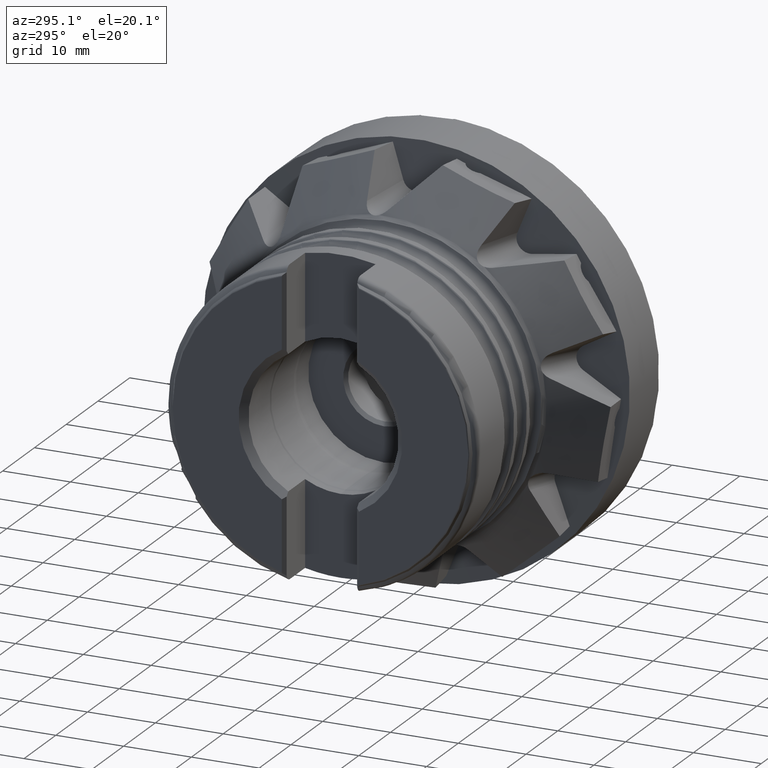
[diagram: clean part render]
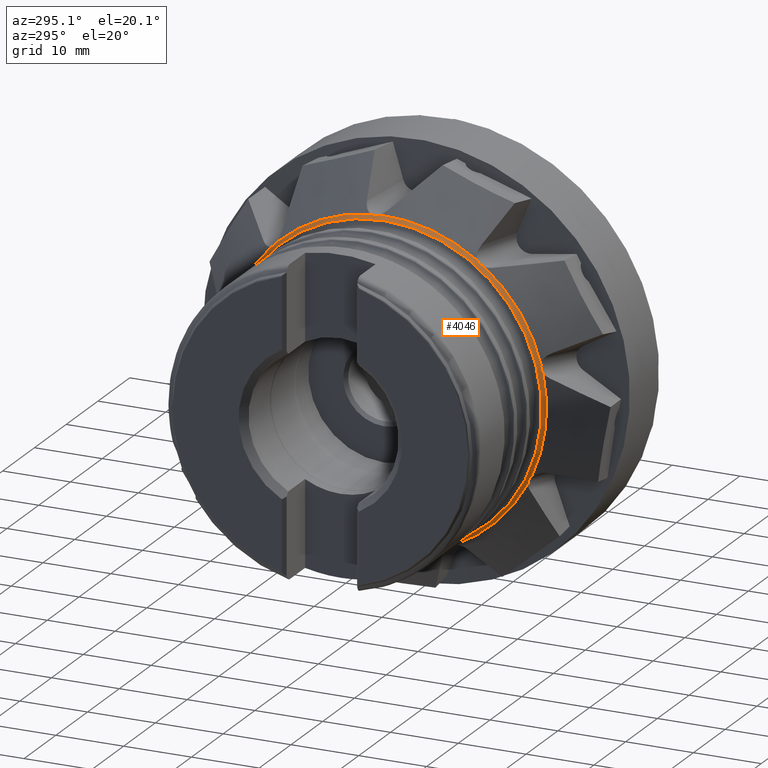
[diagram: same view with one face highlighted and labeled with its STEP entity id]
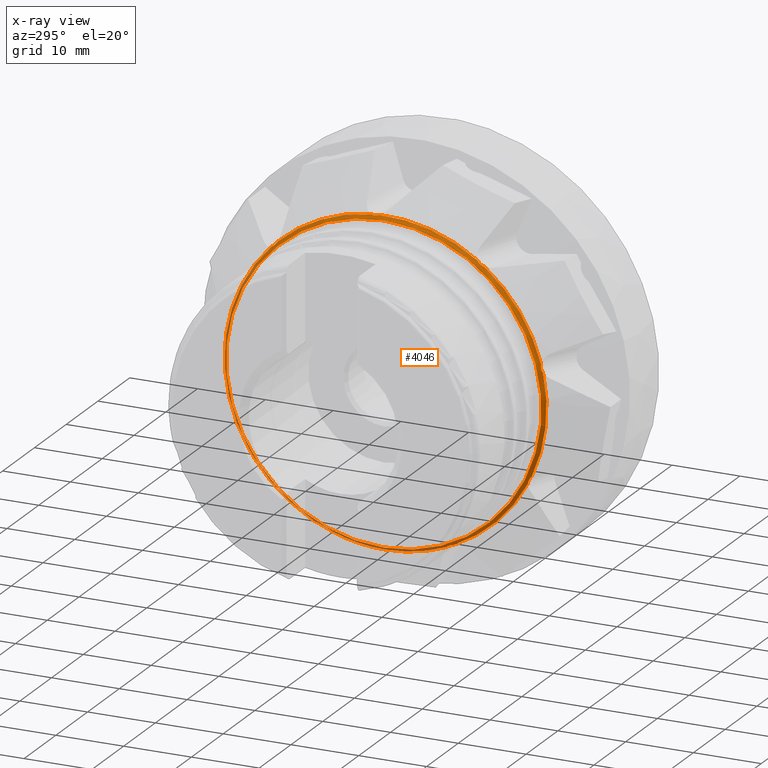
[diagram: x-ray of the same camera — body ghosted, the highlighted face saturated]
A machine part, auxiliary view. The second image highlights one B-rep face of the part: STEP entity #4046.
The next image is the same camera in x-ray: the body ghosted, the highlighted face saturated — about 22% of this face is hidden behind the body in this view.
In plain terms, the highlighted toroidal blend (fillet) surface has major radius 25 mm and minor (blend) radius 2 mm.
Its self-contained STEP definition (entity closure, byte-faithful):
#36 = CARTESIAN_POINT ( 'NONE',  ( -18.87109316118166900, 2.027629076573461000, 23.62315996420056800 ) ) ;
#83 = CARTESIAN_POINT ( 'NONE',  ( -18.89453092292473700, -22.91148521642119500, 5.997104320561804900 ) ) ;
#196 = CARTESIAN_POINT ( 'NONE',  ( -18.84233078654614200, -22.92177747871820900, 6.200229754446998400 ) ) ;
#213 = CARTESIAN_POINT ( 'NONE',  ( -18.92608834092564900, 16.47956966765457300, 16.96047828382316400 ) ) ;
#225 = CARTESIAN_POINT ( 'NONE',  ( -18.92634297155851500, 19.56550581909931800, -13.28201892108478600 ) ) ;
#257 = CARTESIAN_POINT ( 'NONE',  ( -18.92608834092567300, 6.448420220297900400, -22.75196511753589900 ) ) ;
#305 = EDGE_CURVE ( 'NONE', #4736, #3599, #566, .T. ) ;
#337 = CIRCLE ( 'NONE', #7519, 23.74554130340690300 ) ;
#419 = VERTEX_POINT ( 'NONE', #6811 ) ;
#436 = CARTESIAN_POINT ( 'NONE',  ( -18.87109316118166900, -9.984944637708002400, -21.50501911062347200 ) ) ;
#455 = CARTESIAN_POINT ( 'NONE',  ( -18.84233078654613900, -13.57366940061346000, 19.48348610476709900 ) ) ;
#469 = DIRECTION ( 'NONE',  ( 0.0000000000000000000, 0.0000000000000000000, -1.000000000000000000 ) ) ;
#566 = B_SPLINE_CURVE_WITH_KNOTS ( 'NONE', 3,
 ( #5057, #4375, #7798, #1062, #5756, #1735, #6421, #2400 ),
 .UNSPECIFIED., .F., .F.,
 ( 4, 2, 2, 4 ),
 ( 7.245513255973617800E-007, 0.0003134548136920501100, 0.0006261850760585028300, 0.001251645600791410300 ),
 .UNSPECIFIED. ) ;
#576 = CARTESIAN_POINT ( 'NONE',  ( -18.84233078654615000, -21.00247500420518100, -11.07911438200452300 ) ) ;
#741 = CARTESIAN_POINT ( 'NONE',  ( -18.93402310796142300, -22.94565791749596400, 5.686343968082026900 ) ) ;
#754 = B_SPLINE_CURVE_WITH_KNOTS ( 'NONE', 3,
 ( #7583, #2808, #4161, #213, #4846, #845, #5532, #1514 ),
 .UNSPECIFIED., .F., .F.,
 ( 4, 2, 2, 4 ),
 ( 7.245513255863568100E-007, 0.0003134548136920361800, 0.0006261850760584859200, 0.001251645600791393200 ),
 .UNSPECIFIED. ) ;
#845 = CARTESIAN_POINT ( 'NONE',  ( -18.93131883547561100, 16.17224312548226500, 17.24723445849795700 ) ) ;
#851 = CARTESIAN_POINT ( 'NONE',  ( -19.40613999184830600, 0.0000000000000000000, -23.26441874745260900 ) ) ;
#864 = CARTESIAN_POINT ( 'NONE',  ( -18.93224806829895400, 19.73443589431508000, -13.01846135206943300 ) ) ;
#906 = CARTESIAN_POINT ( 'NONE',  ( -18.93131883547559000, 6.850421623344628200, -22.62919061209484200 ) ) ;
#907 = VERTEX_POINT ( 'NONE', #1969 ) ;
#960 = CARTESIAN_POINT ( 'NONE',  ( -18.84233078654614200, 6.091332262707648900, -22.95095647368753700 ) ) ;
#1010 = VERTEX_POINT ( 'NONE', #196 ) ;
#1062 = CARTESIAN_POINT ( 'NONE',  ( -18.92608834092565600, 23.52606806409800900, 2.399616946628320100 ) ) ;
#1137 = VERTEX_POINT ( 'NONE', #7949 ) ;
#1159 = ORIENTED_EDGE ( 'NONE', *, *, #7290, .F. ) ;
#1350 = CARTESIAN_POINT ( 'NONE',  ( -18.92608834092565600, 1.722097473699664800, 23.58534333729733100 ) ) ;
#1374 = VERTEX_POINT ( 'NONE', #576 ) ;
#1392 = CARTESIAN_POINT ( 'NONE',  ( -18.89461513993487800, -23.10590126259101900, 5.189099998130372700 ) ) ;
#1430 = CARTESIAN_POINT ( 'NONE',  ( -18.84233078654613500, -8.967311817664093400, -21.98722471246849600 ) ) ;
#1445 = CARTESIAN_POINT ( 'NONE',  ( -18.84233078654614200, 0.0000000000000000000, 0.0000000000000000000 ) ) ;
#1479 = FACE_OUTER_BOUND ( 'NONE', #3923, .T. ) ;
#1514 = CARTESIAN_POINT ( 'NONE',  ( -18.84233078654614600, 15.94659049083753100, 17.59423154074462700 ) ) ;
#1520 = ORIENTED_EDGE ( 'NONE', *, *, #1980, .F. ) ;
#1529 = CARTESIAN_POINT ( 'NONE',  ( -18.89070057671045100, 19.94191246914689200, -12.78394848300921700 ) ) ;
#1544 = ORIENTED_EDGE ( 'NONE', *, *, #3911, .F. ) ;
#1562 = CARTESIAN_POINT ( 'NONE',  ( -18.84233078654628500, 7.263756228931878700, -22.60726823918470200 ) ) ;
#1572 = EDGE_CURVE ( 'NONE', #1374, #4180, #4811, .T. ) ;
#1591 = CARTESIAN_POINT ( 'NONE',  ( -18.92608834092564900, -21.28655522392733700, -10.30129150863183100 ) ) ;
#1634 = AXIS2_PLACEMENT_3D ( 'NONE', #7396, #3315, #8094 ) ;
#1735 = CARTESIAN_POINT ( 'NONE',  ( -18.93131883547561500, 23.47496559032599700, 2.816830614204170600 ) ) ;
#1755 = CARTESIAN_POINT ( 'NONE',  ( -18.89453092292474800, -9.884532485986444100, -21.52202203761222400 ) ) ;
#1770 = AXIS2_PLACEMENT_3D ( 'NONE', #2860, #7631, #3540 ) ;
#1786 = CARTESIAN_POINT ( 'NONE',  ( -18.84233078654614200, 0.0000000000000000000, 0.0000000000000000000 ) ) ;
#1845 = CIRCLE ( 'NONE', #5558, 23.74554130340690300 ) ;
#1969 = CARTESIAN_POINT ( 'NONE',  ( -18.84233078654614600, 20.09603200835191600, -12.64911970498729800 ) ) ;
#1975 = EDGE_CURVE ( 'NONE', #2251, #2251, #7590, .T. ) ;
#1980 = EDGE_CURVE ( 'NONE', #7617, #1137, #2798, .T. ) ;
#2035 = CARTESIAN_POINT ( 'NONE',  ( -18.93131883547560400, 1.302348367763528100, 23.60746561800083400 ) ) ;
#2042 = AXIS2_PLACEMENT_3D ( 'NONE', #7134, #3037, #7818 ) ;
#2071 = EDGE_CURVE ( 'NONE', #4316, #5288, #5778, .T. ) ;
#2129 = DIRECTION ( 'NONE',  ( 0.0000000000000000000, 0.0000000000000000000, -1.000000000000000000 ) ) ;
#2144 = B_SPLINE_CURVE_WITH_KNOTS ( 'NONE', 3,
 ( #4682, #36, #5354, #1350, #6045, #2035, #6730, #2682 ),
 .UNSPECIFIED., .F., .F.,
 ( 4, 2, 2, 4 ),
 ( 7.245513256657761000E-007, 0.0003134548136921185800, 0.0006261850760585713600, 0.001251645600791478000 ),
 .UNSPECIFIED. ) ;
#2189 = DIRECTION ( 'NONE',  ( 1.000000000000000000, -0.0000000000000000000, -0.0000000000000000000 ) ) ;
#2192 = EDGE_CURVE ( 'NONE', #3717, #1010, #7183, .T. ) ;
#2204 = CARTESIAN_POINT ( 'NONE',  ( -18.84233078654614600, 20.09603200835191600, -12.64911970498729800 ) ) ;
#2208 = CARTESIAN_POINT ( 'NONE',  ( -18.84233078654614200, 6.091332262707648900, -22.95095647368753700 ) ) ;
#2219 = EDGE_CURVE ( 'NONE', #907, #4736, #8600, .T. ) ;
#2251 = VERTEX_POINT ( 'NONE', #851 ) ;
#2272 = CARTESIAN_POINT ( 'NONE',  ( -18.93131883547561900, -21.09583912803816100, -10.67586603794002200 ) ) ;
#2400 = CARTESIAN_POINT ( 'NONE',  ( -18.84233078654613900, 23.52515106854678400, 3.227692518480486300 ) ) ;
#2414 = CARTESIAN_POINT ( 'NONE',  ( -18.93402310796142600, -9.584427308803302700, -21.60963854747120600 ) ) ;
#2435 = DIRECTION ( 'NONE',  ( 0.0000000000000000000, 0.0000000000000000000, -1.000000000000000000 ) ) ;
#2497 = B_SPLINE_CURVE_WITH_KNOTS ( 'NONE', 3,
 ( #7455, #4047, #83, #4725, #741, #5410, #1392, #6086 ),
 .UNSPECIFIED., .F., .F.,
 ( 4, 2, 2, 4 ),
 ( 7.245513359032656500E-007, 0.0003134548137024269600, 0.0006261850760689506400, 0.001251645600802000600 ),
 .UNSPECIFIED. ) ;
#2555 = CARTESIAN_POINT ( 'NONE',  ( -18.89453092292476600, -13.69635158238740900, 19.32126725620295800 ) ) ;
#2590 = CARTESIAN_POINT ( 'NONE',  ( -18.84233078654615000, 19.41882168277999200, -13.66601976598147600 ) ) ;
#2615 = CARTESIAN_POINT ( 'NONE',  ( -18.84233078654614200, 0.0000000000000000000, 0.0000000000000000000 ) ) ;
#2681 = VERTEX_POINT ( 'NONE', #1430 ) ;
#2682 = CARTESIAN_POINT ( 'NONE',  ( -18.84233078654613900, 0.9064429958532339600, 23.72823408699163700 ) ) ;
#2798 = B_SPLINE_CURVE_WITH_KNOTS ( 'NONE', 3,
 ( #2208, #6232, #4216, #257, #4902, #906, #5582, #1562 ),
 .UNSPECIFIED., .F., .F.,
 ( 4, 2, 2, 4 ),
 ( 7.245513255938024400E-007, 0.0003134548136921590200, 0.0006261850760587242300, 0.001251645600791854600 ),
 .UNSPECIFIED. ) ;
#2808 = CARTESIAN_POINT ( 'NONE',  ( -18.87109316118167300, 16.73792851344681100, 16.79305557202494700 ) ) ;
#2860 = CARTESIAN_POINT ( 'NONE',  ( -19.40613999184830600, 0.0000000000000000000, 0.0000000000000000000 ) ) ;
#2913 = CARTESIAN_POINT ( 'NONE',  ( -18.84233078654615000, 23.66002862131616900, 2.013399471119087500 ) ) ;
#2920 = CARTESIAN_POINT ( 'NONE',  ( -18.84233078654615000, -21.00247500420518100, -11.07911438200452300 ) ) ;
#2985 = CARTESIAN_POINT ( 'NONE',  ( -18.84233078654614200, 0.0000000000000000000, 0.0000000000000000000 ) ) ;
#3037 = DIRECTION ( 'NONE',  ( 1.000000000000000000, -0.0000000000000000000, -0.0000000000000000000 ) ) ;
#3067 = CARTESIAN_POINT ( 'NONE',  ( -18.89461513993488100, -9.122563556915350700, -21.85379294532739200 ) ) ;
#3080 = ORIENTED_EDGE ( 'NONE', *, *, #5781, .F. ) ;
#3093 = DIRECTION ( 'NONE',  ( 1.000000000000000000, -0.0000000000000000000, -0.0000000000000000000 ) ) ;
#3120 = EDGE_CURVE ( 'NONE', #7729, #1374, #5783, .T. ) ;
#3215 = CARTESIAN_POINT ( 'NONE',  ( -18.93402310796143000, -13.92228229430779500, 19.10517680388464600 ) ) ;
#3285 = DIRECTION ( 'NONE',  ( 0.0000000000000000000, 0.0000000000000000000, -1.000000000000000000 ) ) ;
#3315 = DIRECTION ( 'NONE',  ( 1.000000000000000000, -0.0000000000000000000, -0.0000000000000000000 ) ) ;
#3540 = DIRECTION ( 'NONE',  ( 0.0000000000000000000, 0.0000000000000000000, -1.000000000000000000 ) ) ;
#3564 = DIRECTION ( 'NONE',  ( 1.000000000000000000, -0.0000000000000000000, -0.0000000000000000000 ) ) ;
#3567 = CARTESIAN_POINT ( 'NONE',  ( -18.87109316118167300, -21.47207118494788200, -10.05560169233574900 ) ) ;
#3599 = VERTEX_POINT ( 'NONE', #6074 ) ;
#3669 = DIRECTION ( 'NONE',  ( 0.0000000000000000000, 0.0000000000000000000, -1.000000000000000000 ) ) ;
#3717 = VERTEX_POINT ( 'NONE', #3851 ) ;
#3851 = CARTESIAN_POINT ( 'NONE',  ( -18.84233078654614600, -14.55783925088255500, 18.75953219398783700 ) ) ;
#3885 = CARTESIAN_POINT ( 'NONE',  ( -18.84233078654614200, -21.54453112735013700, -9.984183005857005400 ) ) ;
#3904 = CARTESIAN_POINT ( 'NONE',  ( -18.89461513993488500, -14.36465808124089000, 18.82726826059059300 ) ) ;
#3911 = EDGE_CURVE ( 'NONE', #1010, #6881, #2497, .T. ) ;
#3923 = EDGE_LOOP ( 'NONE', ( #5588 ) ) ;
#4046 = ADVANCED_FACE ( 'NONE', ( #8280, #1479 ), #8069, .F. ) ;
#4047 = CARTESIAN_POINT ( 'NONE',  ( -18.87109316118165500, -22.91217698926086800, 6.098943513360392600 ) ) ;
#4161 = CARTESIAN_POINT ( 'NONE',  ( -18.89453092292475500, 16.64938729896248800, 16.84337607557147400 ) ) ;
#4174 = CARTESIAN_POINT ( 'NONE',  ( -18.89483807059994900, 19.47910931430617900, -13.47030876822515400 ) ) ;
#4180 = VERTEX_POINT ( 'NONE', #5148 ) ;
#4216 = CARTESIAN_POINT ( 'NONE',  ( -18.89453092292477600, 6.262097917458646600, -22.84048039613322700 ) ) ;
#4247 = CARTESIAN_POINT ( 'NONE',  ( -18.84233078654614200, -21.54453112735013700, -9.984183005857005400 ) ) ;
#4292 = B_SPLINE_CURVE_WITH_KNOTS ( 'NONE', 3,
 ( #8683, #5917, #2555, #7306, #3215, #8000, #3904, #8710 ),
 .UNSPECIFIED., .F., .F.,
 ( 4, 2, 2, 4 ),
 ( 7.245513255701277700E-007, 0.0003134548136920195900, 0.0006261850760584691200, 0.001251645600791378000 ),
 .UNSPECIFIED. ) ;
#4316 = VERTEX_POINT ( 'NONE', #6343 ) ;
#4375 = CARTESIAN_POINT ( 'NONE',  ( -18.87109316118168000, 23.61636517752376500, 2.105293843675214700 ) ) ;
#4437 = DIRECTION ( 'NONE',  ( 1.000000000000000000, -0.0000000000000000000, -0.0000000000000000000 ) ) ;
#4467 = EDGE_CURVE ( 'NONE', #7274, #3717, #4292, .T. ) ;
#4661 = ORIENTED_EDGE ( 'NONE', *, *, #5633, .F. ) ;
#4682 = CARTESIAN_POINT ( 'NONE',  ( -18.84233078654613900, 2.125709444570138100, 23.65020277183830900 ) ) ;
#4725 = CARTESIAN_POINT ( 'NONE',  ( -18.92608834092564900, -22.92798988795246000, 5.791486833712693500 ) ) ;
#4736 = VERTEX_POINT ( 'NONE', #2913 ) ;
#4756 = AXIS2_PLACEMENT_3D ( 'NONE', #1786, #6467, #2435 ) ;
#4762 = B_SPLINE_CURVE_WITH_KNOTS ( 'NONE', 3,
 ( #5077, #436, #1755, #6435, #2414, #7162, #3067, #7839 ),
 .UNSPECIFIED., .F., .F.,
 ( 4, 2, 2, 4 ),
 ( 7.245513255607321600E-007, 0.0003134548136920326000, 0.0006261850760585044600, 0.001251645600791448300 ),
 .UNSPECIFIED. ) ;
#4771 = VERTEX_POINT ( 'NONE', #8420 ) ;
#4811 = CIRCLE ( 'NONE', #4756, 23.74554130340690300 ) ;
#4846 = CARTESIAN_POINT ( 'NONE',  ( -18.93402310796142300, 16.39734728976353400, 17.02835067905794000 ) ) ;
#4863 = CARTESIAN_POINT ( 'NONE',  ( -18.93400312182612700, 19.61673550081005500, -13.19175692510450300 ) ) ;
#4875 = CARTESIAN_POINT ( 'NONE',  ( -20.39999999999999900, 0.0000000000000000000, 0.0000000000000000000 ) ) ;
#4902 = CARTESIAN_POINT ( 'NONE',  ( -18.93402310796143700, 6.548310627732467600, -22.71469464714006700 ) ) ;
#4926 = CIRCLE ( 'NONE', #7783, 23.74554130340690300 ) ;
#5007 = EDGE_CURVE ( 'NONE', #6881, #7729, #4926, .T. ) ;
#5057 = CARTESIAN_POINT ( 'NONE',  ( -18.84233078654615000, 23.66002862131616900, 2.013399471119087500 ) ) ;
#5077 = CARTESIAN_POINT ( 'NONE',  ( -18.84233078654613500, -10.08635922070264200, -21.49688557588634600 ) ) ;
#5148 = CARTESIAN_POINT ( 'NONE',  ( -18.84233078654613500, -10.08635922070264200, -21.49688557588634600 ) ) ;
#5257 = ORIENTED_EDGE ( 'NONE', *, *, #1572, .F. ) ;
#5288 = VERTEX_POINT ( 'NONE', #6546 ) ;
#5304 = ORIENTED_EDGE ( 'NONE', *, *, #5899, .F. ) ;
#5337 = AXIS2_PLACEMENT_3D ( 'NONE', #2985, #7762, #3669 ) ;
#5354 = CARTESIAN_POINT ( 'NONE',  ( -18.89453092292475100, 1.927457175037840400, 23.60479451070020600 ) ) ;
#5410 = CARTESIAN_POINT ( 'NONE',  ( -18.93131883547561900, -23.02266474882668800, 5.381956153596954500 ) ) ;
#5518 = CARTESIAN_POINT ( 'NONE',  ( -18.87085868801232600, 19.44423324862391700, -13.56836093780883500 ) ) ;
#5532 = CARTESIAN_POINT ( 'NONE',  ( -18.89461513993488900, 16.04684305245431400, 17.41574747167343400 ) ) ;
#5549 = CARTESIAN_POINT ( 'NONE',  ( -18.92263333412051900, 19.80109054120552900, -12.93557949332468800 ) ) ;
#5558 = AXIS2_PLACEMENT_3D ( 'NONE', #7179, #3093, #7865 ) ;
#5559 = DIRECTION ( 'NONE',  ( 0.0000000000000000000, 0.0000000000000000000, -1.000000000000000000 ) ) ;
#5582 = CARTESIAN_POINT ( 'NONE',  ( -18.89461513993482100, 7.059058210136909900, -22.60484746980398200 ) ) ;
#5588 = ORIENTED_EDGE ( 'NONE', *, *, #1975, .T. ) ;
#5619 = CARTESIAN_POINT ( 'NONE',  ( -18.89453092292474400, -21.40608028489673800, -10.13317037706079500 ) ) ;
#5633 = EDGE_CURVE ( 'NONE', #4180, #2681, #4762, .T. ) ;
#5756 = CARTESIAN_POINT ( 'NONE',  ( -18.93402310796142300, 23.50670960311119400, 2.504461743586413800 ) ) ;
#5778 = CIRCLE ( 'NONE', #5337, 23.74554130340690300 ) ;
#5781 = EDGE_CURVE ( 'NONE', #5288, #419, #2144, .T. ) ;
#5783 = B_SPLINE_CURVE_WITH_KNOTS ( 'NONE', 3,
 ( #4247, #3567, #5619, #1591, #6291, #2272, #6997, #2920 ),
 .UNSPECIFIED., .F., .F.,
 ( 4, 2, 2, 4 ),
 ( 7.245513292328968600E-007, 0.0003134548136956950900, 0.0006261850760621573500, 0.001251645600795090800 ),
 .UNSPECIFIED. ) ;
#5830 = ORIENTED_EDGE ( 'NONE', *, *, #6582, .F. ) ;
#5899 = EDGE_CURVE ( 'NONE', #4771, #4316, #754, .T. ) ;
#5917 = CARTESIAN_POINT ( 'NONE',  ( -18.87109316118168000, -13.63142053981568900, 19.39972526694810300 ) ) ;
#6016 = ORIENTED_EDGE ( 'NONE', *, *, #2192, .F. ) ;
#6032 = ORIENTED_EDGE ( 'NONE', *, *, #3120, .F. ) ;
#6045 = CARTESIAN_POINT ( 'NONE',  ( -18.93402310796141900, 1.615483943319546300, 23.58448508276076400 ) ) ;
#6064 = AXIS2_PLACEMENT_3D ( 'NONE', #2615, #7371, #3285 ) ;
#6074 = CARTESIAN_POINT ( 'NONE',  ( -18.84233078654613900, 23.52515106854678400, 3.227692518480486300 ) ) ;
#6086 = CARTESIAN_POINT ( 'NONE',  ( -18.84233078654613900, -23.21034671976906700, 5.013036698440222600 ) ) ;
#6126 = ORIENTED_EDGE ( 'NONE', *, *, #305, .F. ) ;
#6150 = DIRECTION ( 'NONE',  ( 1.000000000000000000, -0.0000000000000000000, -0.0000000000000000000 ) ) ;
#6224 = CARTESIAN_POINT ( 'NONE',  ( -18.86847809978568700, 20.01683454010427000, -12.71399391593249500 ) ) ;
#6232 = CARTESIAN_POINT ( 'NONE',  ( -18.87109316118168700, 6.174248475813930000, -22.89199908538533300 ) ) ;
#6291 = CARTESIAN_POINT ( 'NONE',  ( -18.93402310796142300, -21.23250518850568400, -10.39319240705989200 ) ) ;
#6343 = CARTESIAN_POINT ( 'NONE',  ( -18.84233078654614600, 15.94659049083753100, 17.59423154074462700 ) ) ;
#6421 = CARTESIAN_POINT ( 'NONE',  ( -18.89461513993489200, 23.48722163815637400, 3.026524684736634700 ) ) ;
#6435 = CARTESIAN_POINT ( 'NONE',  ( -18.92608834092564500, -9.684904796917047400, -21.57398106798491400 ) ) ;
#6467 = DIRECTION ( 'NONE',  ( 1.000000000000000000, -0.0000000000000000000, -0.0000000000000000000 ) ) ;
#6477 = AXIS2_PLACEMENT_3D ( 'NONE', #4875, #2189, #5559 ) ;
#6546 = CARTESIAN_POINT ( 'NONE',  ( -18.84233078654613900, 2.125709444570138100, 23.65020277183830900 ) ) ;
#6582 = EDGE_CURVE ( 'NONE', #1137, #8513, #8550, .T. ) ;
#6589 = ORIENTED_EDGE ( 'NONE', *, *, #5007, .F. ) ;
#6658 = ORIENTED_EDGE ( 'NONE', *, *, #2071, .F. ) ;
#6730 = CARTESIAN_POINT ( 'NONE',  ( -18.89461513993488100, 1.097968261713611900, 23.65594846214098700 ) ) ;
#6796 = EDGE_CURVE ( 'NONE', #8513, #907, #8357, .T. ) ;
#6811 = CARTESIAN_POINT ( 'NONE',  ( -18.84233078654613900, 0.9064429958532339600, 23.72823408699163700 ) ) ;
#6881 = VERTEX_POINT ( 'NONE', #6991 ) ;
#6897 = CARTESIAN_POINT ( 'NONE',  ( -18.84233078654615000, 19.41882168277999200, -13.66601976598147600 ) ) ;
#6980 = ORIENTED_EDGE ( 'NONE', *, *, #4467, .F. ) ;
#6991 = CARTESIAN_POINT ( 'NONE',  ( -18.84233078654613900, -23.21034671976906700, 5.013036698440222600 ) ) ;
#6997 = CARTESIAN_POINT ( 'NONE',  ( -18.89461513993488900, -21.03563644968628700, -10.87710582387754800 ) ) ;
#7134 = CARTESIAN_POINT ( 'NONE',  ( -18.84233078654614200, 0.0000000000000000000, 0.0000000000000000000 ) ) ;
#7139 = ORIENTED_EDGE ( 'NONE', *, *, #7554, .F. ) ;
#7162 = CARTESIAN_POINT ( 'NONE',  ( -18.93131883547560800, -9.298035925104253300, -21.73833186129005700 ) ) ;
#7179 = CARTESIAN_POINT ( 'NONE',  ( -18.84233078654614200, 0.0000000000000000000, 0.0000000000000000000 ) ) ;
#7183 = CIRCLE ( 'NONE', #7640, 23.74554130340690300 ) ;
#7216 = EDGE_LOOP ( 'NONE', ( #4661, #5257, #6032, #6589, #1544, #6016, #6980, #7919, #3080, #6658, #5304, #7139, #6126, #8019, #7855, #5830, #1520, #1159 ) ) ;
#7274 = VERTEX_POINT ( 'NONE', #455 ) ;
#7290 = EDGE_CURVE ( 'NONE', #2681, #7617, #1845, .T. ) ;
#7306 = CARTESIAN_POINT ( 'NONE',  ( -18.92608834092564900, -13.84116326718086400, 19.17436412135644000 ) ) ;
#7371 = DIRECTION ( 'NONE',  ( 1.000000000000000000, -0.0000000000000000000, -0.0000000000000000000 ) ) ;
#7392 = EDGE_CURVE ( 'NONE', #419, #7274, #8588, .T. ) ;
#7396 = CARTESIAN_POINT ( 'NONE',  ( -18.84233078654614200, 0.0000000000000000000, 0.0000000000000000000 ) ) ;
#7455 = CARTESIAN_POINT ( 'NONE',  ( -18.84233078654614200, -22.92177747871820900, 6.200229754446998400 ) ) ;
#7519 = AXIS2_PLACEMENT_3D ( 'NONE', #7658, #3564, #8366 ) ;
#7554 = EDGE_CURVE ( 'NONE', #3599, #4771, #337, .T. ) ;
#7583 = CARTESIAN_POINT ( 'NONE',  ( -18.84233078654613500, 16.83044521601042100, 16.75072671924042600 ) ) ;
#7590 = CIRCLE ( 'NONE', #1770, 23.26441874745260900 ) ;
#7617 = VERTEX_POINT ( 'NONE', #960 ) ;
#7631 = DIRECTION ( 'NONE',  ( 1.000000000000000000, -0.0000000000000000000, -0.0000000000000000000 ) ) ;
#7640 = AXIS2_PLACEMENT_3D ( 'NONE', #8573, #4437, #469 ) ;
#7658 = CARTESIAN_POINT ( 'NONE',  ( -18.84233078654614200, 0.0000000000000000000, 0.0000000000000000000 ) ) ;
#7729 = VERTEX_POINT ( 'NONE', #3885 ) ;
#7762 = DIRECTION ( 'NONE',  ( 1.000000000000000000, -0.0000000000000000000, -0.0000000000000000000 ) ) ;
#7783 = AXIS2_PLACEMENT_3D ( 'NONE', #1445, #6150, #2129 ) ;
#7798 = CARTESIAN_POINT ( 'NONE',  ( -18.89453092292475800, 23.58088406837393300, 2.200754781409104400 ) ) ;
#7818 = DIRECTION ( 'NONE',  ( 0.0000000000000000000, 0.0000000000000000000, -1.000000000000000000 ) ) ;
#7839 = CARTESIAN_POINT ( 'NONE',  ( -18.84233078654613500, -8.967311817664093400, -21.98722471246849600 ) ) ;
#7855 = ORIENTED_EDGE ( 'NONE', *, *, #6796, .F. ) ;
#7865 = DIRECTION ( 'NONE',  ( 0.0000000000000000000, 0.0000000000000000000, -1.000000000000000000 ) ) ;
#7919 = ORIENTED_EDGE ( 'NONE', *, *, #7392, .F. ) ;
#7949 = CARTESIAN_POINT ( 'NONE',  ( -18.84233078654628500, 7.263756228931878700, -22.60726823918470200 ) ) ;
#8000 = CARTESIAN_POINT ( 'NONE',  ( -18.93131883547561500, -14.17692966522162100, 18.92150124708572500 ) ) ;
#8019 = ORIENTED_EDGE ( 'NONE', *, *, #2219, .F. ) ;
#8069 = TOROIDAL_SURFACE ( 'NONE', #6477, 25.00000000000000000, 2.000000000000002700 ) ;
#8094 = DIRECTION ( 'NONE',  ( 0.0000000000000000000, 0.0000000000000000000, -1.000000000000000000 ) ) ;
#8280 = FACE_OUTER_BOUND ( 'NONE', #7216, .T. ) ;
#8357 = B_SPLINE_CURVE_WITH_KNOTS ( 'NONE', 3,
 ( #6897, #5518, #4174, #225, #4863, #864, #5549, #1529, #6224, #2204 ),
 .UNSPECIFIED., .F., .F.,
 ( 4, 2, 2, 2, 4 ),
 ( 0.0002536813686247166500, 0.0005682600782676502900, 0.0008828387879105839400, 0.001197417497553517600, 0.001511996207196451200 ),
 .UNSPECIFIED. ) ;
#8366 = DIRECTION ( 'NONE',  ( 0.0000000000000000000, 0.0000000000000000000, -1.000000000000000000 ) ) ;
#8420 = CARTESIAN_POINT ( 'NONE',  ( -18.84233078654613500, 16.83044521601042100, 16.75072671924042600 ) ) ;
#8513 = VERTEX_POINT ( 'NONE', #2590 ) ;
#8550 = CIRCLE ( 'NONE', #6064, 23.74554130340690300 ) ;
#8573 = CARTESIAN_POINT ( 'NONE',  ( -18.84233078654614200, 0.0000000000000000000, 0.0000000000000000000 ) ) ;
#8588 = CIRCLE ( 'NONE', #1634, 23.74554130340690300 ) ;
#8600 = CIRCLE ( 'NONE', #2042, 23.74554130340690300 ) ;
#8683 = CARTESIAN_POINT ( 'NONE',  ( -18.84233078654613900, -13.57366940061346000, 19.48348610476709900 ) ) ;
#8710 = CARTESIAN_POINT ( 'NONE',  ( -18.84233078654614600, -14.55783925088255500, 18.75953219398783700 ) ) ;